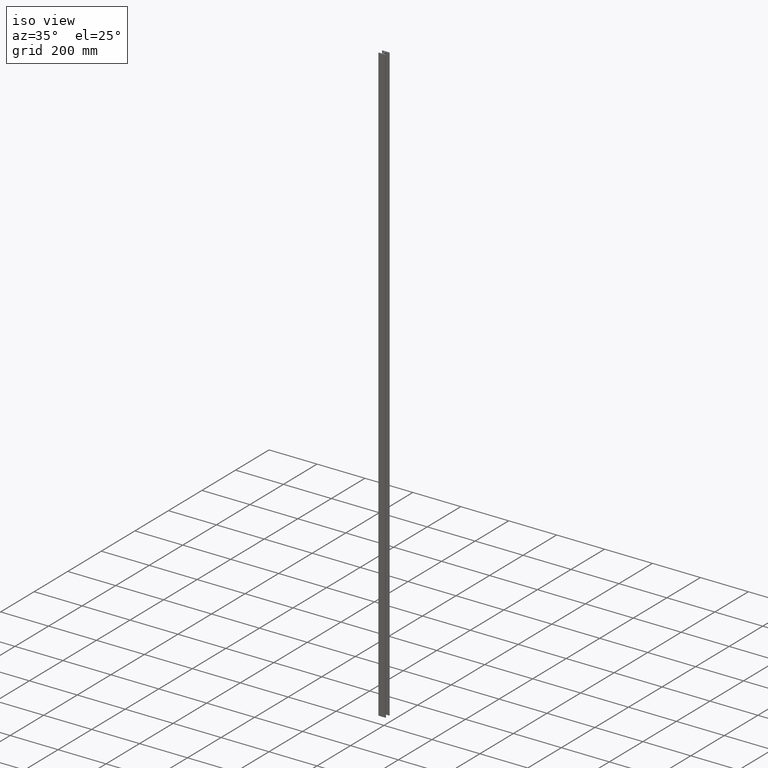
[diagram: clean part render]
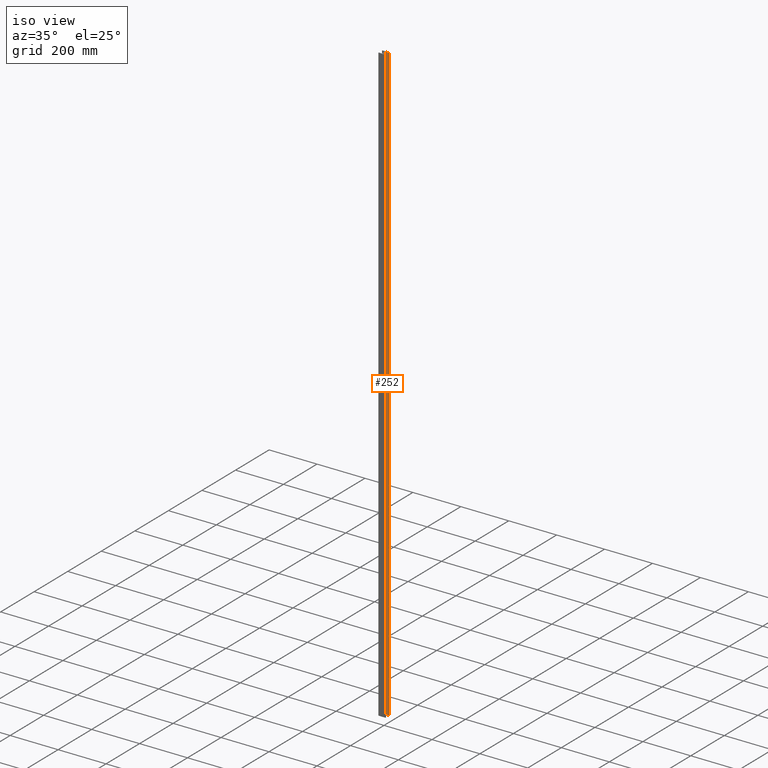
[diagram: same view with one face highlighted and labeled with its STEP entity id]
A machine part, iso view. The second image highlights one B-rep face of the part: STEP entity #252.
In plain terms, the highlighted planar face has unit normal (-0, 1, 0).
Its self-contained STEP definition (entity closure, byte-faithful):
#21 = LINE ( 'NONE', #258, #595 ) ;
#26 = LINE ( 'NONE', #120, #541 ) ;
#104 = FACE_OUTER_BOUND ( 'NONE', #501, .T. ) ;
#110 = DIRECTION ( 'NONE',  ( 1.000000000000000000, 1.371322905910519400E-016, 0.0000000000000000000 ) ) ;
#120 = CARTESIAN_POINT ( 'NONE',  ( 2.050000000000000700, 8.999999999999994700, 1250.000000000000000 ) ) ;
#132 = VECTOR ( 'NONE', #332, 1000.000000000000000 ) ;
#134 = DIRECTION ( 'NONE',  ( -0.0000000000000000000, -0.0000000000000000000, -1.000000000000000000 ) ) ;
#139 = CARTESIAN_POINT ( 'NONE',  ( 14.70000000000000100, 8.999999999999994700, -1250.000000000000000 ) ) ;
#154 = CARTESIAN_POINT ( 'NONE',  ( 14.70000000000000100, 8.999999999999994700, 1250.000000000000000 ) ) ;
#252 = ADVANCED_FACE ( 'NONE', ( #104 ), #734, .F. ) ;
#258 = CARTESIAN_POINT ( 'NONE',  ( 2.050000000000000700, 8.999999999999994700, -1250.000000000000000 ) ) ;
#268 = DIRECTION ( 'NONE',  ( 1.000000000000000000, 1.371322905910519400E-016, 0.0000000000000000000 ) ) ;
#293 = VERTEX_POINT ( 'NONE', #653 ) ;
#326 = CARTESIAN_POINT ( 'NONE',  ( 2.050000000000000700, 8.999999999999994700, 1250.000000000000000 ) ) ;
#332 = DIRECTION ( 'NONE',  ( -0.0000000000000000000, -0.0000000000000000000, -1.000000000000000000 ) ) ;
#366 = VERTEX_POINT ( 'NONE', #510 ) ;
#384 = VECTOR ( 'NONE', #134, 1000.000000000000000 ) ;
#388 = VERTEX_POINT ( 'NONE', #484 ) ;
#421 = ORIENTED_EDGE ( 'NONE', *, *, #567, .F. ) ;
#457 = ORIENTED_EDGE ( 'NONE', *, *, #507, .T. ) ;
#468 = EDGE_CURVE ( 'NONE', #293, #388, #818, .T. ) ;
#484 = CARTESIAN_POINT ( 'NONE',  ( 2.050000000000000700, 8.999999999999994700, -1250.000000000000000 ) ) ;
#501 = EDGE_LOOP ( 'NONE', ( #457, #421, #738, #599 ) ) ;
#507 = EDGE_CURVE ( 'NONE', #388, #808, #21, .T. ) ;
#510 = CARTESIAN_POINT ( 'NONE',  ( 14.70000000000000100, 8.999999999999994700, 1250.000000000000000 ) ) ;
#541 = VECTOR ( 'NONE', #110, 1000.000000000000000 ) ;
#567 = EDGE_CURVE ( 'NONE', #366, #808, #593, .T. ) ;
#593 = LINE ( 'NONE', #154, #384 ) ;
#595 = VECTOR ( 'NONE', #268, 1000.000000000000000 ) ;
#599 = ORIENTED_EDGE ( 'NONE', *, *, #468, .T. ) ;
#613 = EDGE_CURVE ( 'NONE', #293, #366, #26, .T. ) ;
#653 = CARTESIAN_POINT ( 'NONE',  ( 2.050000000000000700, 8.999999999999994700, 1250.000000000000000 ) ) ;
#725 = DIRECTION ( 'NONE',  ( -1.000000000000000000, -1.371322905910519400E-016, 0.0000000000000000000 ) ) ;
#728 = DIRECTION ( 'NONE',  ( -1.371322905910519400E-016, 1.000000000000000000, 0.0000000000000000000 ) ) ;
#731 = CARTESIAN_POINT ( 'NONE',  ( 2.050000000000000700, 8.999999999999994700, 1250.000000000000000 ) ) ;
#734 = PLANE ( 'NONE',  #903 ) ;
#738 = ORIENTED_EDGE ( 'NONE', *, *, #613, .F. ) ;
#808 = VERTEX_POINT ( 'NONE', #139 ) ;
#818 = LINE ( 'NONE', #326, #132 ) ;
#903 = AXIS2_PLACEMENT_3D ( 'NONE', #731, #728, #725 ) ;